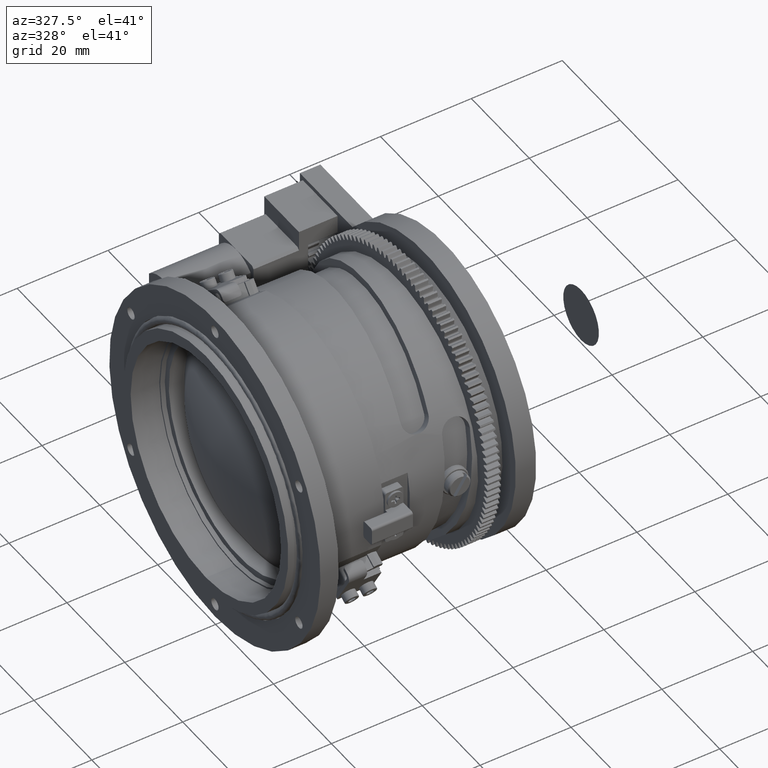
[diagram: clean part render]
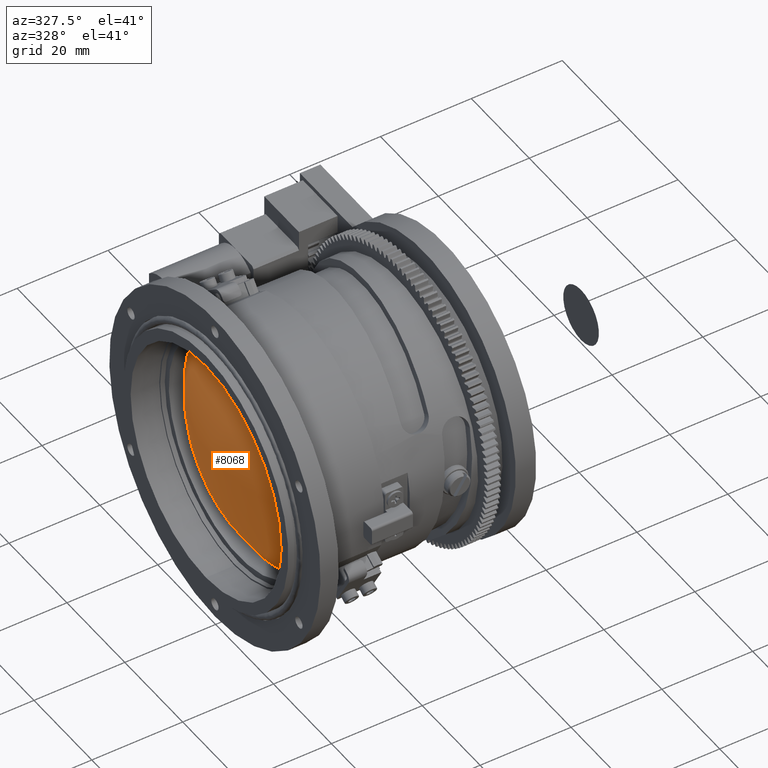
[diagram: same view with one face highlighted and labeled with its STEP entity id]
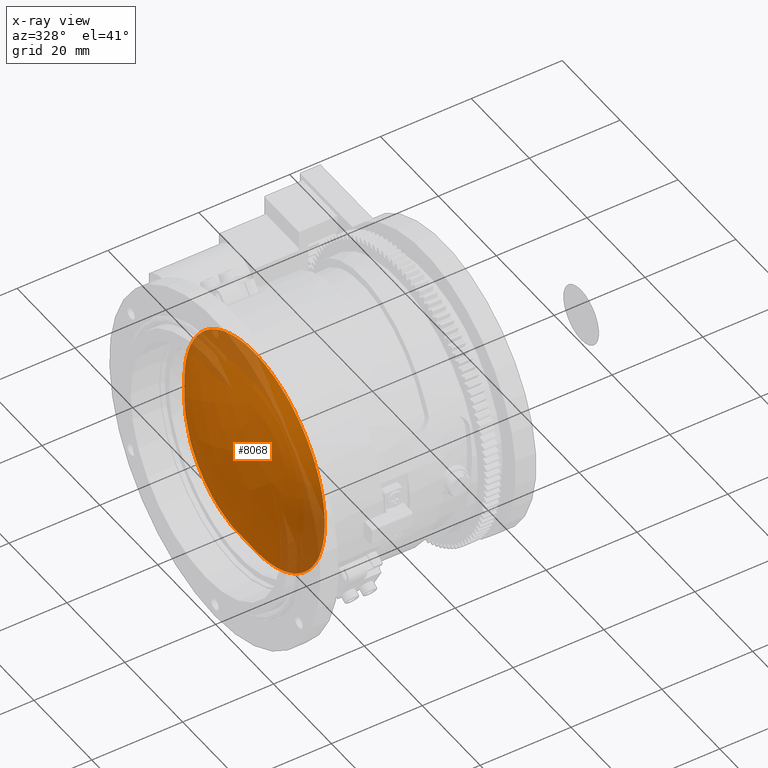
[diagram: x-ray of the same camera — body ghosted, the highlighted face saturated]
A machine part, auxiliary view. The second image highlights one B-rep face of the part: STEP entity #8068.
The next image is the same camera in x-ray: the body ghosted, the highlighted face saturated — about 24% of this face is hidden behind the body in this view.
In plain terms, the highlighted face is a freeform B-spline surface patch.
Its self-contained STEP definition (entity closure, byte-faithful):
#87 = CARTESIAN_POINT ( 'NONE',  ( 8.573622139635951100, -23.70240898025775778, 5.123427941680366970 ) ) ;
#356 = CARTESIAN_POINT ( 'NONE',  ( 8.573622139635991957, -3.974289362858227648, -23.93170898063365115 ) ) ;
#2301 = CARTESIAN_POINT ( 'NONE',  ( 8.573622139635970640, -3.185649587135813476, -24.04966316571925589 ) ) ;
#2593 = CARTESIAN_POINT ( 'NONE',  ( 8.573622139635972417, 12.14801041600738252, 20.99885192004313339 ) ) ;
#2883 = CARTESIAN_POINT ( 'NONE',  ( 8.573622139635993733, 23.93877589834400155, 3.931049486473699783 ) ) ;
#3156 = CARTESIAN_POINT ( 'NONE',  ( 8.573622139635975969, 16.00936549291776601, -18.27823123093203250 ) ) ;
#3454 = CARTESIAN_POINT ( 'NONE',  ( 8.573622139635954653, 12.78783172836654991, -20.60399996208429130 ) ) ;
#3557 = CARTESIAN_POINT ( 'NONE',  ( 8.573622139635975969, -12.14447867389278457, 21.04559083434206812 ) ) ;
#3849 = CARTESIAN_POINT ( 'NONE',  ( 8.573622139635958206, -24.09167039331818216, 3.167312703799638030 ) ) ;
#4123 = CARTESIAN_POINT ( 'NONE',  ( 8.573622139635970640, -21.19763796182731141, 11.77761334645460956 ) ) ;
#4698 = CARTESIAN_POINT ( 'NONE',  ( 8.573622139635970640, -23.01403560635996826, -7.795592172195979330 ) ) ;
#4722 = CARTESIAN_POINT ( 'NONE',  ( -5.868550009746114071, -9.538183332783502166, -10.22845576613993224 ) ) ;
#6638 = CARTESIAN_POINT ( 'NONE',  ( 8.573622139635974193, -1.593347704125072539, -24.20735228748348078 ) ) ;
#6909 = CARTESIAN_POINT ( 'NONE',  ( 8.573622139635970640, 7.830316971867095965, 22.96102044355551186 ) ) ;
#7197 = CARTESIAN_POINT ( 'NONE',  ( 8.573622139635949324, 21.05571492566619440, 12.12673163885765426 ) ) ;
#7487 = CARTESIAN_POINT ( 'NONE',  ( 8.573622139635981299, 21.03543716460384871, -12.16227149178632949 ) ) ;
#7761 = CARTESIAN_POINT ( 'NONE',  ( 8.573622139635970640, 10.74712975961470285, 21.74914115447612772 ) ) ;
#7867 = CARTESIAN_POINT ( 'NONE',  ( 8.573622139635972417, -13.79177200315804441, 19.94589006754534211 ) ) ;
#8068 = ADVANCED_FACE ( 'NONE', ( #21759 ), #44308, .T. ) ;
#8169 = CARTESIAN_POINT ( 'NONE',  ( 8.573622139635981299, -7.815262849749053942, -23.00750930736910860 ) ) ;
#8462 = CARTESIAN_POINT ( 'NONE',  ( 8.573622139635949324, -15.07236824873966086, 18.99678972466284677 ) ) ;
#8734 = CARTESIAN_POINT ( 'NONE',  ( 8.573622139635972417, -22.10385930134066612, -9.997230551789664688 ) ) ;
#8757 = CARTESIAN_POINT ( 'NONE',  ( 15.35128693111159315, 24.52556308895417203, -19.70328330101532188 ) ) ;
#9021 = CARTESIAN_POINT ( 'NONE',  ( 8.573622139635972417, -22.96790583844346756, 7.810182623163020921 ) ) ;
#9135 = EDGE_LOOP ( 'NONE', ( #46060 ) ) ;
#9329 = CARTESIAN_POINT ( 'NONE',  ( 15.42419202841697690, -24.64709285056665422, -19.64857046593207457 ) ) ;
#10973 = CARTESIAN_POINT ( 'NONE',  ( 8.573622139635951100, 9.993890810392434432, -22.10520705313334844 ) ) ;
#11258 = CARTESIAN_POINT ( 'NONE',  ( 8.573622139635999062, 1.601844394748929146, 24.24653766809052158 ) ) ;
#11527 = CARTESIAN_POINT ( 'NONE',  ( 8.573622139635951100, 19.73903492743935217, 14.10289437026586512 ) ) ;
#11823 = CARTESIAN_POINT ( 'NONE',  ( 8.573622139635975969, 19.26633351776580483, 14.74260201725699204 ) ) ;
#12119 = CARTESIAN_POINT ( 'NONE',  ( 8.573622139635991957, 11.75776888813743604, -21.20864332848653433 ) ) ;
#12501 = CARTESIAN_POINT ( 'NONE',  ( 8.573622139635974193, -19.26848906119582239, 14.80410551458052915 ) ) ;
#12804 = CARTESIAN_POINT ( 'NONE',  ( 8.573622139635979522, -21.75867250494386695, 10.72774577203210811 ) ) ;
#13088 = CARTESIAN_POINT ( 'NONE',  ( 8.573622139635974193, -14.11651204839831664, 19.71743545152594379 ) ) ;
#13334 = B_SPLINE_CURVE_WITH_KNOTS ( 'NONE', 3,
 ( #47129, #11258, #28863, #46541, #42212, #6909, #50873, #24521, #7761, #2593, #15880, #24814, #55218, #19927, #20215, #11823, #11527, #7197, #33780, #56082, #42497, #33218, #38432, #2883, #38731, #15593, #37870, #55510, #38147, #33500, #51145, #29145, #16456, #46831, #34078, #20497, #55778, #24245, #7487, #16156, #51438, #29438, #42773, #25382, #25101, #3156, #43068, #20779, #3454, #51736, #12119, #28592, #10973, #29720, #41927, #21073, #56374, #46269, #32925, #50591, #6638, #2301, #356, #48367, #8169, #17977, #21458, #38833, #29811, #26342, #39120, #39411, #52964, #56468, #56742, #35606, #26635, #47818, #8734, #4698, #43470, #39700, #17134, #30963, #25783, #17700, #13361, #35321, #3849, #87, #34758, #48653, #52410, #9021, #44317, #12804, #4123, #52689, #47510, #22301, #12501, #35047, #39974, #43170, #8462, #22018, #13088, #7867, #3557, #48103, #30688, #25486, #26064, #16848, #57037, #34470, #43745 ),
 .UNSPECIFIED., .T., .F.,
 ( 4, 2, 2, 2, 2, 2, 2, 2, 2, 2, 2, 2, 2, 2, 2, 2, 2, 2, 2, 2, 2, 2, 2, 2, 2, 2, 2, 2, 2, 2, 2, 2, 2, 2, 2, 2, 2, 2, 2, 2, 2, 2, 2, 2, 2, 2, 2, 1, 2, 2, 2, 2, 2, 2, 2, 2, 2, 2, 4 ),
 ( 0.000000000000000000, 0.004778930197545842341, 0.007168395296318763078, 0.009557860395091686417, 0.01194732549386460889, 0.01433679059263752963, 0.01911572079018337630, 0.02150518588895630051, 0.02389465098772922819, 0.02867358118527508007, 0.03106304628404800774, 0.03345251138282093195, 0.03584197648159385963, 0.03703670903098032346, 0.03823144158036678730, 0.04301037177791264265, 0.04539983687668557727, 0.04659456942607204805, 0.04778930197545851188, 0.05256823217300438111, 0.05376296472239083801, 0.05495769727177729491, 0.05734716237055021565, 0.06212609256809606406, 0.06332082511748253484, 0.06451555766686900562, 0.06690502276564193329, 0.06929448786441487484, 0.07168395296318781640, 0.07646288316073368563, 0.07885234825950662718, 0.08124181335827956874, 0.08602074355582543796, 0.08841020865459837952, 0.09079967375337132107, 0.09318913885214426263, 0.09557860395091720418, 0.1003575341484630873, 0.1027469992472360427, 0.1051364643460089981, 0.1099153945435548813, 0.1111101270929413659, 0.1123048596423278367, 0.1146943247411007921, 0.1194732549386467030, 0.1206679874880331599, 0.1218627200374196584, 0.1242521851361926000, 0.1266416502349655693, 0.1278363827843520539, 0.1290311153337385108, 0.1338100455312843939, 0.1361995106300573355, 0.1373942431794437924, 0.1385889757288302493, 0.1433679059263761602, 0.1457573710251491017, 0.1481468361239220433, 0.1529257663214679264 ),
 .UNSPECIFIED. ) ;
#13361 = CARTESIAN_POINT ( 'NONE',  ( 8.573622139635952877, -24.24695405866695097, -0.7777526971812190881 ) ) ;
#13384 = CARTESIAN_POINT ( 'NONE',  ( -5.936636104729575258, 9.374581743290843150, 10.09467212994885266 ) ) ;
#13683 = CARTESIAN_POINT ( 'NONE',  ( -5.898879643486360180, -9.538183332783502166, 10.08665534484258153 ) ) ;
#15593 = CARTESIAN_POINT ( 'NONE',  ( 8.573622139635972417, 24.16987609007629345, 1.966870225786635284 ) ) ;
#15880 = CARTESIAN_POINT ( 'NONE',  ( 8.573622139635951100, 12.83724498068059461, 20.58477972699404290 ) ) ;
#16156 = CARTESIAN_POINT ( 'NONE',  ( 8.573622139635972417, 19.93309518738102426, -13.81026963420432985 ) ) ;
#16456 = CARTESIAN_POINT ( 'NONE',  ( 8.573622139635972417, 23.42982616585992517, -6.290717344624344065 ) ) ;
#16848 = CARTESIAN_POINT ( 'NONE',  ( 8.573622139635975969, -5.501025771194013814, 23.62746647399794142 ) ) ;
#17134 = CARTESIAN_POINT ( 'NONE',  ( 8.573622139635995509, -23.92608759166883559, -3.949146535594459273 ) ) ;
#17700 = CARTESIAN_POINT ( 'NONE',  ( 8.573622139635977746, -24.20880202902419853, -1.570411993294552611 ) ) ;
#17977 = CARTESIAN_POINT ( 'NONE',  ( 8.573622139635972417, -10.01897687720404839, -22.09404893826582850 ) ) ;
#18001 = CARTESIAN_POINT ( 'NONE',  ( 6.254381360979736293, 24.52556308895417203, 7.506167698353549689 ) ) ;
#18297 = CARTESIAN_POINT ( 'NONE',  ( 6.276951708562829246, 24.52556308895417203, -7.611691056252293919 ) ) ;
#18853 = CARTESIAN_POINT ( 'NONE',  ( 15.36563984223313994, -24.64709285056665422, 19.57030630333179388 ) ) ;
#19927 = CARTESIAN_POINT ( 'NONE',  ( 8.573622139635951100, 17.71778924439903591, 16.57108804018142934 ) ) ;
#20215 = CARTESIAN_POINT ( 'NONE',  ( 8.573622139635975969, 18.25154643275924826, 15.98177006059873051 ) ) ;
#20497 = CARTESIAN_POINT ( 'NONE',  ( 8.573622139635970640, 22.68612524580757039, -8.567015307379580946 ) ) ;
#20779 = CARTESIAN_POINT ( 'NONE',  ( 8.573622139635970640, 13.12693011479828264, -20.38964659129926460 ) ) ;
#21073 = CARTESIAN_POINT ( 'NONE',  ( 8.573622139635972417, 6.269937235488154847, -23.43529417860016295 ) ) ;
#21458 = CARTESIAN_POINT ( 'NONE',  ( 8.573622139635975969, -10.74580964894951052, -21.74981771047284695 ) ) ;
#21759 = FACE_OUTER_BOUND ( 'NONE', #9135, .T. ) ;
#22018 = CARTESIAN_POINT ( 'NONE',  ( 8.573622139635977746, -14.75640405513388309, 19.24322510805545505 ) ) ;
#22301 = CARTESIAN_POINT ( 'NONE',  ( 8.573622139635974193, -20.37631165558048352, 13.14759915624978781 ) ) ;
#24245 = CARTESIAN_POINT ( 'NONE',  ( 8.573622139635970640, 21.78107191992915759, -10.77027889621491497 ) ) ;
#24521 = CARTESIAN_POINT ( 'NONE',  ( 8.573622139635970640, 10.03217360326437557, 22.08786113929781436 ) ) ;
#24814 = CARTESIAN_POINT ( 'NONE',  ( 8.573622139635951100, 14.82066960328605987, 19.25554585700785637 ) ) ;
#25044 = EDGE_CURVE ( 'NONE', #27677, #27677, #13334, .T. ) ;
#25101 = CARTESIAN_POINT ( 'NONE',  ( 8.573622139635972417, 17.68768442663289520, -16.60316660748059547 ) ) ;
#25382 = CARTESIAN_POINT ( 'NONE',  ( 8.573622139635972417, 18.22115417033523244, -16.01626413322634335 ) ) ;
#25486 = CARTESIAN_POINT ( 'NONE',  ( 8.573622139635968864, -7.792505480014300545, 22.97400201127117114 ) ) ;
#25783 = CARTESIAN_POINT ( 'NONE',  ( 8.573622139635970640, -24.09195667977349942, -2.762541834037877564 ) ) ;
#26064 = CARTESIAN_POINT ( 'NONE',  ( 8.573622139635972417, -6.269261379751171148, 23.43553438311797876 ) ) ;
#26342 = CARTESIAN_POINT ( 'NONE',  ( 8.573622139635993733, -14.13912746061198256, -19.71302494578925746 ) ) ;
#26635 = CARTESIAN_POINT ( 'NONE',  ( 8.573622139635974193, -21.01001155330209968, -12.12882045393922326 ) ) ;
#27677 = VERTEX_POINT ( 'NONE', #50239 ) ;
#28592 = CARTESIAN_POINT ( 'NONE',  ( 8.573622139635995509, 10.70855594017337609, -21.76809103373593146 ) ) ;
#28863 = CARTESIAN_POINT ( 'NONE',  ( 8.573622139635974193, 3.187079116749018226, 24.08934124377109143 ) ) ;
#29145 = CARTESIAN_POINT ( 'NONE',  ( 8.573622139635991957, 23.62260404444923978, -5.521912657940383440 ) ) ;
#29438 = CARTESIAN_POINT ( 'NONE',  ( 8.573622139635972417, 19.22842733934322013, -14.77569870695061383 ) ) ;
#29720 = CARTESIAN_POINT ( 'NONE',  ( 8.573622139635951100, 8.534537367350376158, -22.70858217320584416 ) ) ;
#29811 = CARTESIAN_POINT ( 'NONE',  ( 8.573622139635997286, -12.82636479840246579, -20.59132448190363007 ) ) ;
#30688 = CARTESIAN_POINT ( 'NONE',  ( 8.573622139635991957, -8.549580708520606365, 22.70309895918629906 ) ) ;
#30963 = CARTESIAN_POINT ( 'NONE',  ( 8.573622139635991957, -24.04295262234238706, -3.160673188358182006 ) ) ;
#32925 = CARTESIAN_POINT ( 'NONE',  ( 8.573622139635952877, 1.573753687169556992, -24.24709547627698569 ) ) ;
#32984 = CARTESIAN_POINT ( 'NONE',  ( 6.375054769016610834, -24.64709285056665422, -7.590554619694845684 ) ) ;
#33218 = CARTESIAN_POINT ( 'NONE',  ( 8.573622139635990180, 23.44114763365147169, 6.248097665929821076 ) ) ;
#33500 = CARTESIAN_POINT ( 'NONE',  ( 8.573622139636034589, 24.24489291231899557, -1.623495280169047872 ) ) ;
#33780 = CARTESIAN_POINT ( 'NONE',  ( 8.573622139635970640, 21.79966504384814030, 10.73322224536524949 ) ) ;
#34078 = CARTESIAN_POINT ( 'NONE',  ( 8.573622139635972417, 22.95591619237749015, -7.815365744089336708 ) ) ;
#34470 = CARTESIAN_POINT ( 'NONE',  ( 8.573622139636000838, -1.601844394748940026, 24.24653766809053224 ) ) ;
#34758 = CARTESIAN_POINT ( 'NONE',  ( 8.573622139635970640, -23.61438217575676290, 5.514950131554043011 ) ) ;
#35047 = CARTESIAN_POINT ( 'NONE',  ( 8.573622139635975969, -18.26480417105157628, 16.02477736681871079 ) ) ;
#35321 = CARTESIAN_POINT ( 'NONE',  ( 8.573622139635954653, -24.24569463277603276, 1.594128799091332649 ) ) ;
#35606 = CARTESIAN_POINT ( 'NONE',  ( 8.573622139635995509, -20.60260719541035002, -12.80824946525268082 ) ) ;
#37870 = CARTESIAN_POINT ( 'NONE',  ( 8.573622139635975969, 24.19887164104106603, 1.570909612717575676 ) ) ;
#38147 = CARTESIAN_POINT ( 'NONE',  ( 8.573622139636038142, 24.24693306358166467, 0.3749328914639039612 ) ) ;
#38432 = CARTESIAN_POINT ( 'NONE',  ( 8.573622139635988404, 23.63226914667989220, 5.480328143014962627 ) ) ;
#38731 = CARTESIAN_POINT ( 'NONE',  ( 8.573622139635977746, 24.05415942474270707, 3.149540042223753833 ) ) ;
#38833 = CARTESIAN_POINT ( 'NONE',  ( 8.573622139635970640, -12.14788719801587646, -20.99894835639481983 ) ) ;
#39120 = CARTESIAN_POINT ( 'NONE',  ( 8.573622139635949324, -14.77341115514463077, -19.24234733338210290 ) ) ;
#39411 = CARTESIAN_POINT ( 'NONE',  ( 8.573622139635952877, -15.99742882529554144, -18.23743071370178015 ) ) ;
#39437 = CARTESIAN_POINT ( 'NONE',  ( 15.29257170222131279, 24.52556308895417203, 19.62480120631516201 ) ) ;
#39700 = CARTESIAN_POINT ( 'NONE',  ( 8.573622139635968864, -23.85814050021923549, -4.340598424709688707 ) ) ;
#39974 = CARTESIAN_POINT ( 'NONE',  ( 8.573622139635975969, -16.58724238936357409, 17.70264025081687720 ) ) ;
#41927 = CARTESIAN_POINT ( 'NONE',  ( 8.573622139635970640, 7.789849427636714729, -22.97484215548039899 ) ) ;
#42212 = CARTESIAN_POINT ( 'NONE',  ( 8.573622139635974193, 6.314632077794058773, 23.42323089181718743 ) ) ;
#42497 = CARTESIAN_POINT ( 'NONE',  ( 8.573622139635997286, 22.98170882145562999, 7.769632325372329618 ) ) ;
#42773 = CARTESIAN_POINT ( 'NONE',  ( 8.573622139635972417, 18.98128987189061334, -15.09186438078350889 ) ) ;
#43068 = CARTESIAN_POINT ( 'NONE',  ( 8.573622139635970640, 14.78735429001450008, -19.28157248410201063 ) ) ;
#43170 = CARTESIAN_POINT ( 'NONE',  ( 8.573622139635949324, -15.99917769589686145, 18.23622121656254791 ) ) ;
#43470 = CARTESIAN_POINT ( 'NONE',  ( 8.573622139635977746, -23.47162202089452876, -6.284165128398632838 ) ) ;
#43745 = CARTESIAN_POINT ( 'NONE',  ( 8.573622139636000838, 3.035766082959412415E-15, 24.24653766809052513 ) ) ;
#44308 =( BOUNDED_SURFACE ( )  B_SPLINE_SURFACE ( 3, 3, ( 
 ( #8757, #18297, #18001, #39437 ),
 ( #52987, #53577, #13384, #48676 ),
 ( #44340, #4722, #13683, #48968 ),
 ( #9329, #32984, #45190, #18853 ) ),
 .UNSPECIFIED., .F., .F., .T. ) 
 B_SPLINE_SURFACE_WITH_KNOTS ( ( 4, 4 ),
 ( 4, 4 ),
 ( 0.000000000000000000, 1.000000000000000000 ),
 ( 0.000000000000000000, 1.000000000000000000 ),
 .UNSPECIFIED. ) 
 GEOMETRIC_REPRESENTATION_ITEM ( )  RATIONAL_B_SPLINE_SURFACE ( (
 ( 1.000000000000000000, 0.8671440655211549720, 0.8671440655211549720, 1.000000000000000000),
 ( 0.8666572681066579964, 0.7515167068794650351, 0.7515167068794650351, 0.8666572681066579964),
 ( 0.8666572681066579964, 0.7515167068794650351, 0.7515167068794650351, 0.8666572681066579964),
 ( 1.000000000000000000, 0.8671440655211549720, 0.8671440655211549720, 1.000000000000000000) ) ) 
 REPRESENTATION_ITEM ( '' )  SURFACE ( )  );
#44317 = CARTESIAN_POINT ( 'NONE',  ( 8.573622139636015049, -22.43445720187304460, 9.298218556124702161 ) ) ;
#44340 = CARTESIAN_POINT ( 'NONE',  ( 6.325381108191936441, -9.538183332783502166, -26.47692348556596897 ) ) ;
#45190 = CARTESIAN_POINT ( 'NONE',  ( 6.352547095643003239, -24.64709285056665422, 7.485324283115940780 ) ) ;
#46060 = ORIENTED_EDGE ( 'NONE', *, *, #25044, .T. ) ;
#46269 = CARTESIAN_POINT ( 'NONE',  ( 8.573622139635970640, 3.146336920100788692, -24.09424666940114079 ) ) ;
#46541 = CARTESIAN_POINT ( 'NONE',  ( 8.573622139635972417, 5.540113621703394386, 23.61866934101142945 ) ) ;
#46831 = CARTESIAN_POINT ( 'NONE',  ( 8.573622139635972417, 23.08203399259489075, -7.434589306100649608 ) ) ;
#47129 = CARTESIAN_POINT ( 'NONE',  ( 8.573622139636000838, 3.035766082959412415E-15, 24.24653766809052513 ) ) ;
#47510 = CARTESIAN_POINT ( 'NONE',  ( 8.573622139635951100, -20.59101973883842973, 12.80874327546788649 ) ) ;
#47818 = CARTESIAN_POINT ( 'NONE',  ( 8.573622139635970640, -21.76064914193110056, -10.72394610185799557 ) ) ;
#48103 = CARTESIAN_POINT ( 'NONE',  ( 8.573622139635999062, -10.75181983629532567, 21.79033579607946791 ) ) ;
#48367 = CARTESIAN_POINT ( 'NONE',  ( 8.573622139635993733, -6.303895088309656281, -23.46622727962602539 ) ) ;
#48653 = CARTESIAN_POINT ( 'NONE',  ( 8.573622139635970640, -23.42018282568760768, 6.288780240046068393 ) ) ;
#48676 = CARTESIAN_POINT ( 'NONE',  ( 6.218377186928817579, 9.374581743290844926, 26.39242044067708903 ) ) ;
#48968 = CARTESIAN_POINT ( 'NONE',  ( 6.246480622470084398, -9.538183332783502166, 26.37146063530811446 ) ) ;
#50239 = CARTESIAN_POINT ( 'NONE',  ( 8.573622139635972417, 2.509056362093098893E-15, 24.24653766809051447 ) ) ;
#50591 = CARTESIAN_POINT ( 'NONE',  ( 8.573622139635951100, -0.7997329098740202369, -24.24625649180418208 ) ) ;
#50873 = CARTESIAN_POINT ( 'NONE',  ( 8.573622139635972417, 8.573767505009875833, 22.69380152563632791 ) ) ;
#51145 = CARTESIAN_POINT ( 'NONE',  ( 8.573622139635988404, 24.08670206275917991, -3.197308561975724217 ) ) ;
#51438 = CARTESIAN_POINT ( 'NONE',  ( 8.573622139635974193, 19.70403538748013261, -14.13522832047345190 ) ) ;
#51736 = CARTESIAN_POINT ( 'NONE',  ( 8.573622139635951100, 12.10370236028020408, -21.01318262244761570 ) ) ;
#52410 = CARTESIAN_POINT ( 'NONE',  ( 8.573622139635972417, -23.31388838502526895, 6.671915690310203928 ) ) ;
#52689 = CARTESIAN_POINT ( 'NONE',  ( 8.573622139635952877, -21.00157775030208640, 12.12384964357831052 ) ) ;
#52964 = CARTESIAN_POINT ( 'NONE',  ( 8.573622139635952877, -16.58820116134669220, -17.70215755677831737 ) ) ;
#52987 = CARTESIAN_POINT ( 'NONE',  ( 6.297340382063968178, 9.374581743290844926, -26.49796711188235321 ) ) ;
#53577 = CARTESIAN_POINT ( 'NONE',  ( -5.906282365262728540, 9.374581743290843150, -10.23658525297603461 ) ) ;
#55218 = CARTESIAN_POINT ( 'NONE',  ( 8.573622139635951100, 16.04016844724917945, 18.25139139054938653 ) ) ;
#55510 = CARTESIAN_POINT ( 'NONE',  ( 8.573622139635972417, 24.23740517883715739, 0.7754585145500760834 ) ) ;
#55778 = CARTESIAN_POINT ( 'NONE',  ( 8.573622139635970640, 22.54245758406705491, -8.938101490123493420 ) ) ;
#56082 = CARTESIAN_POINT ( 'NONE',  ( 8.573622139635972417, 22.71161807949434319, 8.527028194328895694 ) ) ;
#56374 = CARTESIAN_POINT ( 'NONE',  ( 8.573622139635972417, 5.490302967816296231, -23.63018312739812998 ) ) ;
#56468 = CARTESIAN_POINT ( 'NONE',  ( 8.573622139635947548, -18.28466576040314351, -16.00395048408912757 ) ) ;
#56742 = CARTESIAN_POINT ( 'NONE',  ( 8.573622139635999062, -19.28644857504270149, -14.77916929810037239 ) ) ;
#57037 = CARTESIAN_POINT ( 'NONE',  ( 8.573622139635974193, -3.176920866008882349, 24.08935933564172771 ) ) ;